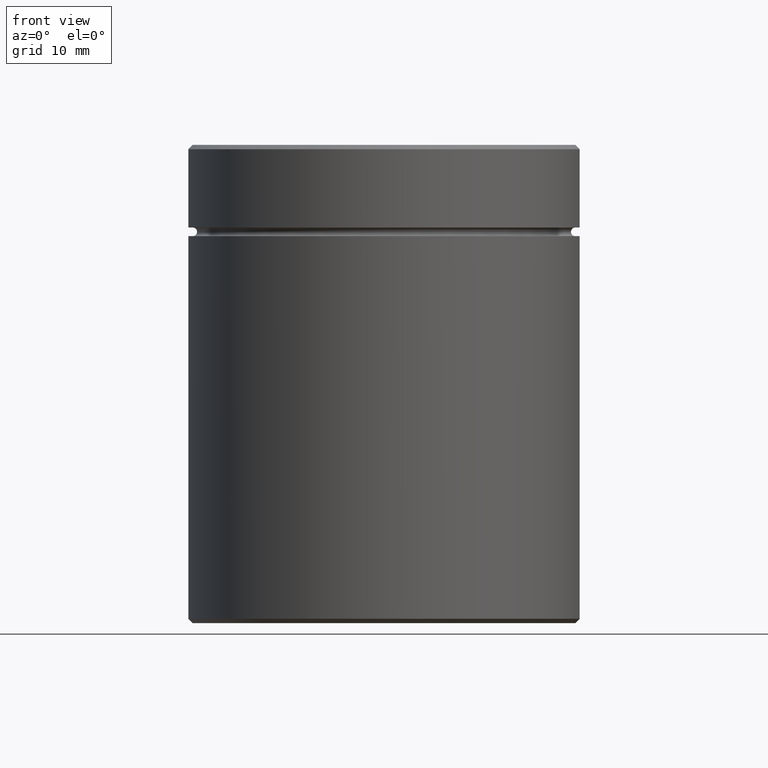
[diagram: clean part render]
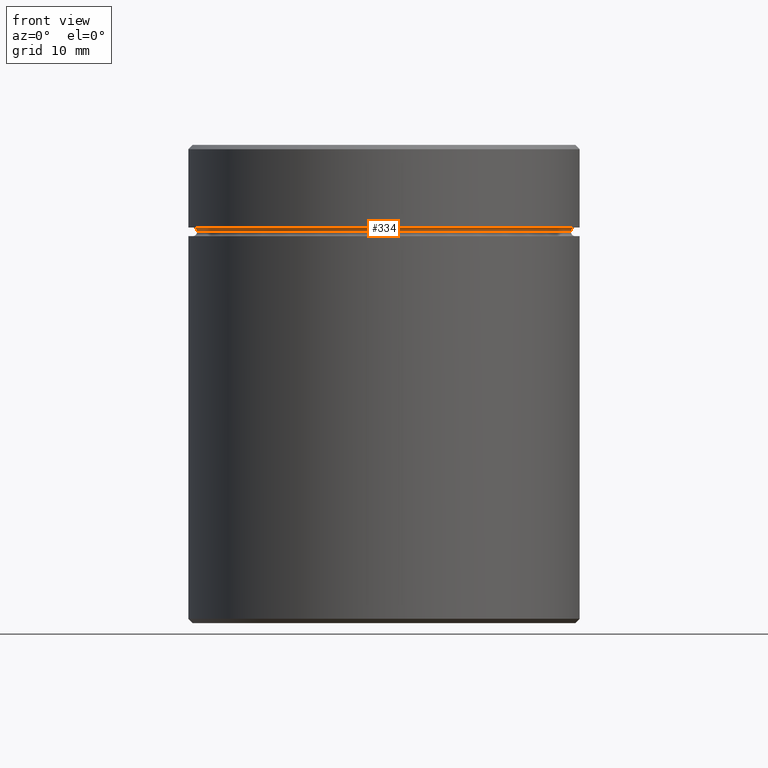
[diagram: same view with one face highlighted and labeled with its STEP entity id]
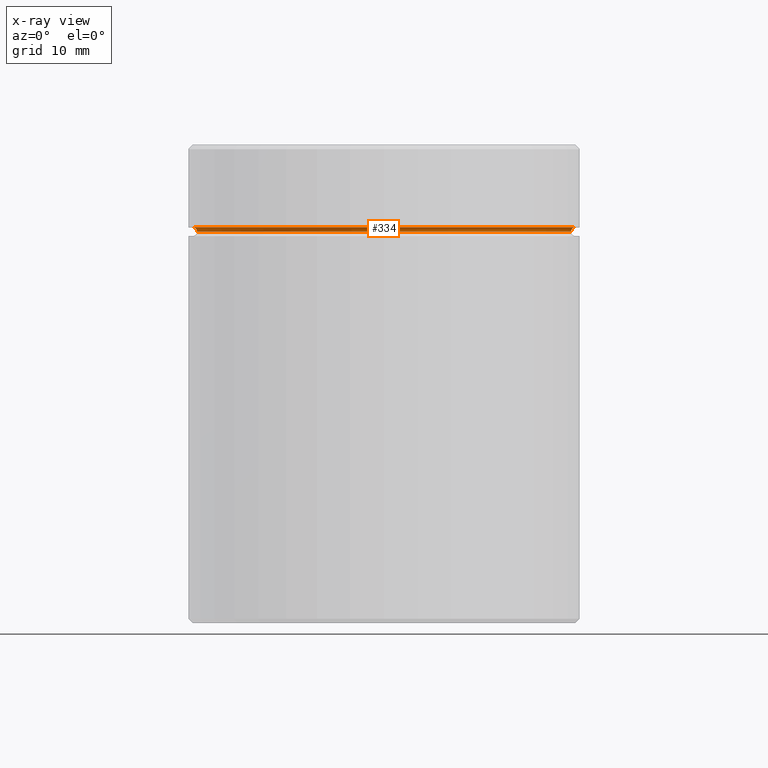
[diagram: x-ray of the same camera — body ghosted, the highlighted face saturated]
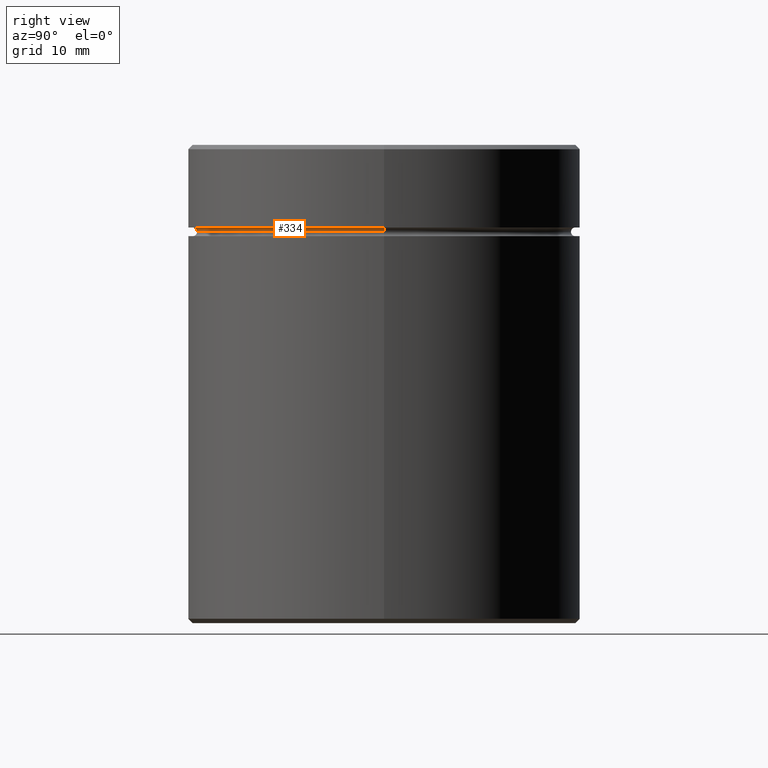
[diagram: same view with one face highlighted and labeled with its STEP entity id]
A machine part, front view. The second image highlights one B-rep face of the part: STEP entity #334.
The next image is the same camera in x-ray: the body ghosted, the highlighted face saturated — about 0% of this face is hidden behind the body in this view.
A second angle (right view) of the same face is appended — the face is thin or edge-on in the first view.
In plain terms, the highlighted toroidal blend (fillet) surface has major radius 22 mm and minor (blend) radius 0.5 mm.
Its self-contained STEP definition (entity closure, byte-faithful):
#7 = CARTESIAN_POINT ( 'NONE',  ( -22.00000000000000000, 0.000000000000000000, -9.999999999999998224 ) ) ;
#19 = EDGE_CURVE ( 'NONE', #215, #234, #495, .T. ) ;
#22 = CARTESIAN_POINT ( 'NONE',  ( 0.000000000000000000, 0.000000000000000000, -9.499999999999998224 ) ) ;
#28 = DIRECTION ( 'NONE',  ( -1.000000000000000000, 0.000000000000000000, 0.000000000000000000 ) ) ;
#29 = ORIENTED_EDGE ( 'NONE', *, *, #19, .T. ) ;
#31 = DIRECTION ( 'NONE',  ( 1.000000000000000000, 0.000000000000000000, 0.000000000000000000 ) ) ;
#34 = DIRECTION ( 'NONE',  ( -0.000000000000000000, -0.000000000000000000, 1.000000000000000000 ) ) ;
#59 = DIRECTION ( 'NONE',  ( 0.000000000000000000, 0.000000000000000000, -1.000000000000000000 ) ) ;
#69 = CARTESIAN_POINT ( 'NONE',  ( -22.00000000000000000, 0.000000000000000000, -9.499999999999998224 ) ) ;
#74 = AXIS2_PLACEMENT_3D ( 'NONE', #262, #59, #440 ) ;
#78 = EDGE_CURVE ( 'NONE', #234, #467, #97, .T. ) ;
#90 = AXIS2_PLACEMENT_3D ( 'NONE', #22, #121, #28 ) ;
#91 = CARTESIAN_POINT ( 'NONE',  ( 22.00000000000000000, 2.694222958124176809E-15, -9.999999999999998224 ) ) ;
#97 = CIRCLE ( 'NONE', #407, 0.5000000000000004441 ) ;
#110 = CARTESIAN_POINT ( 'NONE',  ( 21.50000000000000000, 0.000000000000000000, -10.00000000000000178 ) ) ;
#116 = ORIENTED_EDGE ( 'NONE', *, *, #172, .F. ) ;
#121 = DIRECTION ( 'NONE',  ( -0.000000000000000000, -0.000000000000000000, 1.000000000000000000 ) ) ;
#166 = CARTESIAN_POINT ( 'NONE',  ( 0.000000000000000000, 0.000000000000000000, -10.00000000000000178 ) ) ;
#172 = EDGE_CURVE ( 'NONE', #215, #550, #456, .T. ) ;
#212 = DIRECTION ( 'NONE',  ( -1.000000000000000000, -1.224646799147349509E-16, 0.000000000000000000 ) ) ;
#215 = VERTEX_POINT ( 'NONE', #342 ) ;
#218 = DIRECTION ( 'NONE',  ( -0.000000000000000000, -1.000000000000000000, -0.000000000000000000 ) ) ;
#232 = AXIS2_PLACEMENT_3D ( 'NONE', #7, #218, #305 ) ;
#234 = VERTEX_POINT ( 'NONE', #110 ) ;
#262 = CARTESIAN_POINT ( 'NONE',  ( 0.000000000000000000, 0.000000000000000000, -9.999999999999998224 ) ) ;
#292 = DIRECTION ( 'NONE',  ( -1.224646799147353207E-16, 1.000000000000000000, 0.000000000000000000 ) ) ;
#293 = TOROIDAL_SURFACE ( 'NONE', #74, 22.00000000000000000, 0.5000000000000000000 ) ;
#305 = DIRECTION ( 'NONE',  ( 0.000000000000000000, 0.000000000000000000, -1.000000000000000000 ) ) ;
#312 = FACE_OUTER_BOUND ( 'NONE', #429, .T. ) ;
#324 = CARTESIAN_POINT ( 'NONE',  ( 22.00000000000000000, 2.694222958124176809E-15, -9.499999999999998224 ) ) ;
#330 = CIRCLE ( 'NONE', #90, 22.00000000000000000 ) ;
#332 = AXIS2_PLACEMENT_3D ( 'NONE', #166, #34, #31 ) ;
#334 = ADVANCED_FACE ( 'NONE', ( #312 ), #293, .F. ) ;
#342 = CARTESIAN_POINT ( 'NONE',  ( -21.50000000000000000, 2.663606788145493022E-15, -10.00000000000000178 ) ) ;
#395 = ORIENTED_EDGE ( 'NONE', *, *, #78, .T. ) ;
#403 = ORIENTED_EDGE ( 'NONE', *, *, #434, .F. ) ;
#407 = AXIS2_PLACEMENT_3D ( 'NONE', #91, #292, #212 ) ;
#429 = EDGE_LOOP ( 'NONE', ( #29, #395, #403, #116 ) ) ;
#434 = EDGE_CURVE ( 'NONE', #550, #467, #330, .T. ) ;
#440 = DIRECTION ( 'NONE',  ( -1.000000000000000000, 0.000000000000000000, 0.000000000000000000 ) ) ;
#456 = CIRCLE ( 'NONE', #232, 0.5000000000000004441 ) ;
#467 = VERTEX_POINT ( 'NONE', #324 ) ;
#495 = CIRCLE ( 'NONE', #332, 21.50000000000000000 ) ;
#550 = VERTEX_POINT ( 'NONE', #69 ) ;